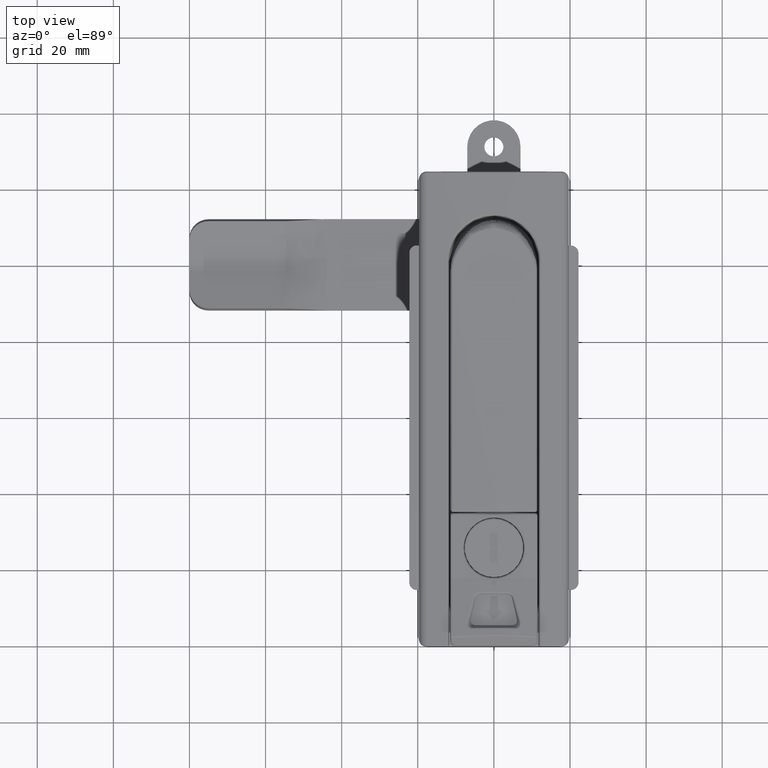
[diagram: clean part render]
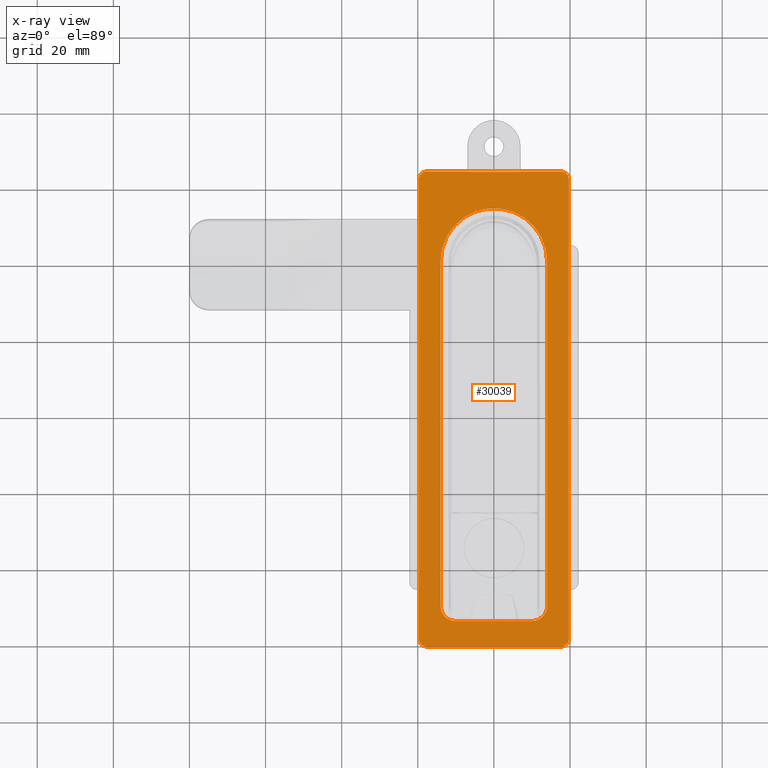
[diagram: x-ray — body ghosted, one internal face saturated and labeled with its STEP entity id]
A machine part, top view, then the same camera in x-ray: the body is ghosted and one INTERNAL B-rep face — a face not visible from any outside direction — is saturated and labeled: STEP entity #30039.
In plain terms, the highlighted planar face has unit normal (-0, 0, 1).
Its self-contained STEP definition (entity closure, byte-faithful):
#291=FACE_BOUND('',#9550,.T.);
#2077=CIRCLE('',#32044,4.);
#2079=CIRCLE('',#32048,14.);
#2081=CIRCLE('',#32052,4.00000000000002);
#2083=CIRCLE('',#32056,2.);
#2085=CIRCLE('',#32060,1.99999999999999);
#2087=CIRCLE('',#32064,2.);
#2089=CIRCLE('',#32068,2.);
#3853=LINE('',#68810,#5625);
#3857=LINE('',#68822,#5629);
#3861=LINE('',#68834,#5633);
#3865=LINE('',#68846,#5637);
#3869=LINE('',#68858,#5641);
#3873=LINE('',#68870,#5645);
#3877=LINE('',#68882,#5649);
#5625=VECTOR('',#37494,20.);
#5629=VECTOR('',#37506,90.5);
#5633=VECTOR('',#37518,90.5);
#5637=VECTOR('',#37530,35.4);
#5641=VECTOR('',#37542,120.8);
#5645=VECTOR('',#37554,35.4);
#5649=VECTOR('',#37566,120.8);
#7712=FACE_OUTER_BOUND('',#9549,.T.);
#9549=EDGE_LOOP('',(#26859,#26860,#26861,#26862,#26863,#26864,#26865,#26866));
#9550=EDGE_LOOP('',(#26867,#26868,#26869,#26870,#26871,#26872));
#14118=VERTEX_POINT('',#68807);
#14119=VERTEX_POINT('',#68809);
#14121=VERTEX_POINT('',#68815);
#14123=VERTEX_POINT('',#68821);
#14125=VERTEX_POINT('',#68827);
#14127=VERTEX_POINT('',#68833);
#14130=VERTEX_POINT('',#68843);
#14131=VERTEX_POINT('',#68845);
#14133=VERTEX_POINT('',#68851);
#14135=VERTEX_POINT('',#68857);
#14137=VERTEX_POINT('',#68863);
#14139=VERTEX_POINT('',#68869);
#14141=VERTEX_POINT('',#68875);
#14143=VERTEX_POINT('',#68881);
#18398=EDGE_CURVE('',#14119,#14118,#3853,.T.);
#18401=EDGE_CURVE('',#14121,#14119,#2077,.T.);
#18404=EDGE_CURVE('',#14123,#14121,#3857,.T.);
#18407=EDGE_CURVE('',#14125,#14123,#2079,.T.);
#18410=EDGE_CURVE('',#14127,#14125,#3861,.T.);
#18413=EDGE_CURVE('',#14118,#14127,#2081,.T.);
#18416=EDGE_CURVE('',#14131,#14130,#3865,.T.);
#18419=EDGE_CURVE('',#14133,#14131,#2083,.T.);
#18422=EDGE_CURVE('',#14135,#14133,#3869,.T.);
#18425=EDGE_CURVE('',#14137,#14135,#2085,.T.);
#18428=EDGE_CURVE('',#14139,#14137,#3873,.T.);
#18431=EDGE_CURVE('',#14141,#14139,#2087,.T.);
#18434=EDGE_CURVE('',#14143,#14141,#3877,.T.);
#18437=EDGE_CURVE('',#14130,#14143,#2089,.T.);
#26859=ORIENTED_EDGE('',*,*,#18437,.T.);
#26860=ORIENTED_EDGE('',*,*,#18434,.T.);
#26861=ORIENTED_EDGE('',*,*,#18431,.T.);
#26862=ORIENTED_EDGE('',*,*,#18428,.T.);
#26863=ORIENTED_EDGE('',*,*,#18425,.T.);
#26864=ORIENTED_EDGE('',*,*,#18422,.T.);
#26865=ORIENTED_EDGE('',*,*,#18419,.T.);
#26866=ORIENTED_EDGE('',*,*,#18416,.T.);
#26867=ORIENTED_EDGE('',*,*,#18413,.T.);
#26868=ORIENTED_EDGE('',*,*,#18410,.T.);
#26869=ORIENTED_EDGE('',*,*,#18407,.T.);
#26870=ORIENTED_EDGE('',*,*,#18404,.T.);
#26871=ORIENTED_EDGE('',*,*,#18401,.T.);
#26872=ORIENTED_EDGE('',*,*,#18398,.T.);
#28522=PLANE('',#32069);
#30039=ADVANCED_FACE('',(#7712,#291),#28522,.T.);
#32044=AXIS2_PLACEMENT_3D('',#68816,#37500,#37501);
#32048=AXIS2_PLACEMENT_3D('',#68828,#37512,#37513);
#32052=AXIS2_PLACEMENT_3D('',#68838,#37524,#37525);
#32056=AXIS2_PLACEMENT_3D('',#68852,#37536,#37537);
#32060=AXIS2_PLACEMENT_3D('',#68864,#37548,#37549);
#32064=AXIS2_PLACEMENT_3D('',#68876,#37560,#37561);
#32068=AXIS2_PLACEMENT_3D('',#68886,#37572,#37573);
#32069=AXIS2_PLACEMENT_3D('',#68887,#37574,#37575);
#37494=DIRECTION('',(0.,-1.,0.));
#37500=DIRECTION('center_axis',(0.,0.,-1.));
#37501=DIRECTION('ref_axis',(1.,0.,0.));
#37506=DIRECTION('',(1.,2.12482875526346E-17,0.));
#37512=DIRECTION('center_axis',(0.,0.,-1.));
#37513=DIRECTION('ref_axis',(-1.,0.,0.));
#37518=DIRECTION('',(-1.,0.,0.));
#37524=DIRECTION('center_axis',(0.,0.,-1.));
#37525=DIRECTION('ref_axis',(4.4408920985006E-15,-1.,0.));
#37530=DIRECTION('',(0.,-1.,0.));
#37536=DIRECTION('center_axis',(0.,0.,1.));
#37537=DIRECTION('ref_axis',(0.,1.,0.));
#37542=DIRECTION('',(-1.,0.,0.));
#37548=DIRECTION('center_axis',(0.,0.,1.));
#37549=DIRECTION('ref_axis',(1.,0.,0.));
#37554=DIRECTION('',(0.,1.,0.));
#37560=DIRECTION('center_axis',(0.,0.,1.));
#37561=DIRECTION('ref_axis',(0.,-1.,0.));
#37566=DIRECTION('',(1.,0.,0.));
#37572=DIRECTION('center_axis',(0.,0.,1.));
#37573=DIRECTION('ref_axis',(-1.,0.,0.));
#37574=DIRECTION('center_axis',(0.,0.,1.));
#37575=DIRECTION('ref_axis',(-1.,0.,0.));
#68807=CARTESIAN_POINT('',(94.65,-10.,-31.2));
#68809=CARTESIAN_POINT('',(94.65,10.,-31.2));
#68810=CARTESIAN_POINT('',(94.65,-10.,-31.2));
#68815=CARTESIAN_POINT('',(90.65,14.,-31.2));
#68816=CARTESIAN_POINT('Origin',(90.65,10.,-31.2));
#68821=CARTESIAN_POINT('',(0.150000000000006,14.,-31.2));
#68822=CARTESIAN_POINT('',(90.65,14.,-31.2));
#68827=CARTESIAN_POINT('',(0.150000000000006,-14.,-31.2));
#68828=CARTESIAN_POINT('Origin',(0.149999999999999,0.,-31.2));
#68833=CARTESIAN_POINT('',(90.65,-14.,-31.2));
#68834=CARTESIAN_POINT('',(-13.85,-14.,-31.2));
#68838=CARTESIAN_POINT('Origin',(90.65,-9.99999999999998,-31.2));
#68843=CARTESIAN_POINT('',(-23.45,-17.7,-31.2));
#68845=CARTESIAN_POINT('',(-23.45,17.7,-31.2));
#68846=CARTESIAN_POINT('',(-23.45,-17.7,-31.2));
#68851=CARTESIAN_POINT('',(-21.45,19.7,-31.2));
#68852=CARTESIAN_POINT('Origin',(-21.45,17.7,-31.2));
#68857=CARTESIAN_POINT('',(99.35,19.7,-31.2));
#68858=CARTESIAN_POINT('',(-21.45,19.7,-31.2));
#68863=CARTESIAN_POINT('',(101.35,17.7,-31.2));
#68864=CARTESIAN_POINT('Origin',(99.35,17.7,-31.2));
#68869=CARTESIAN_POINT('',(101.35,-17.7,-31.2));
#68870=CARTESIAN_POINT('',(101.35,-17.7,-31.2));
#68875=CARTESIAN_POINT('',(99.35,-19.7,-31.2));
#68876=CARTESIAN_POINT('Origin',(99.35,-17.7,-31.2));
#68881=CARTESIAN_POINT('',(-21.45,-19.7,-31.2));
#68882=CARTESIAN_POINT('',(-21.45,-19.7,-31.2));
#68886=CARTESIAN_POINT('Origin',(-21.45,-17.7,-31.2));
#68887=CARTESIAN_POINT('Origin',(38.95,-2.22044604925031E-15,-31.2));